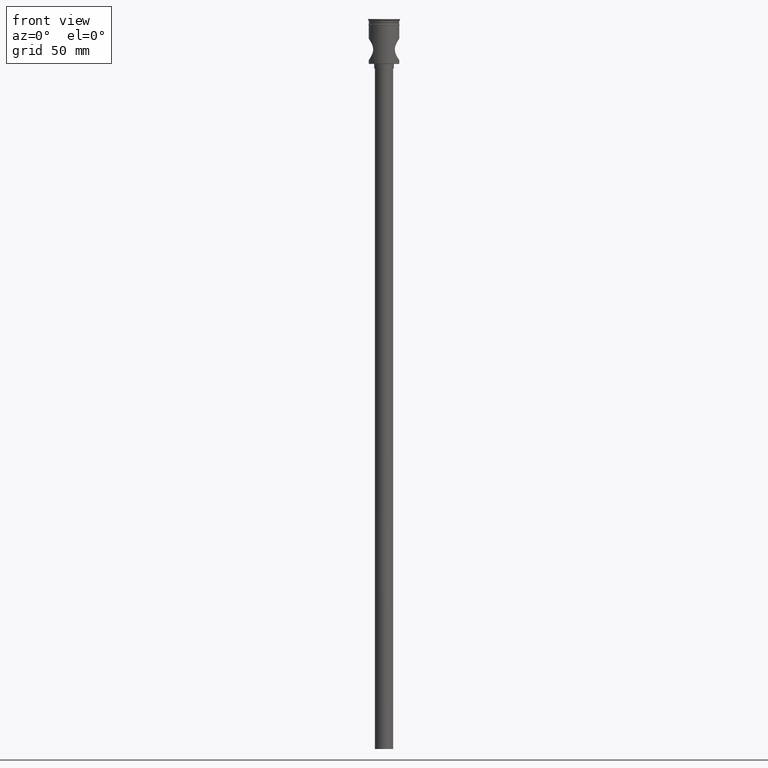
[diagram: clean part render]
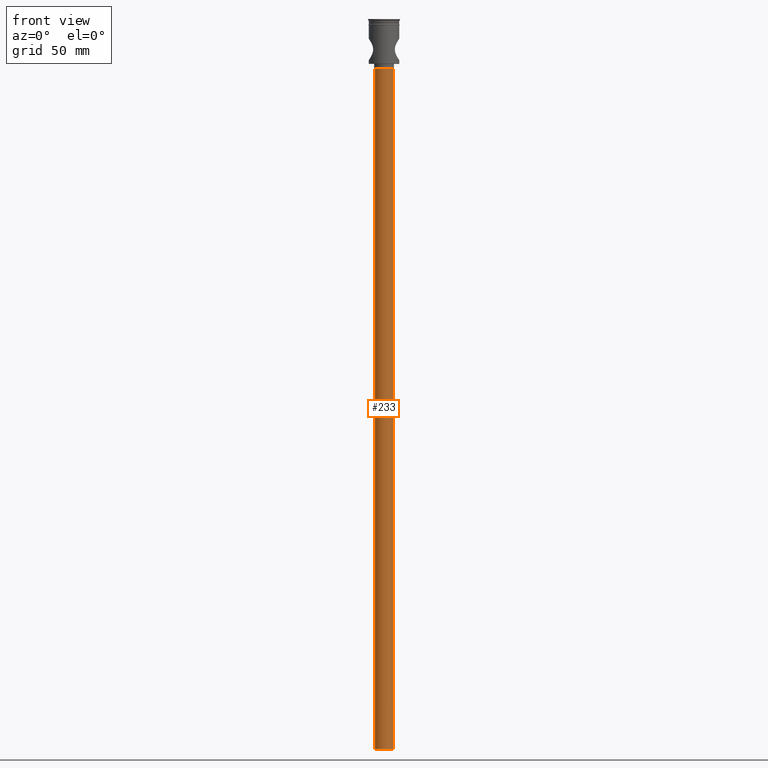
[diagram: same view with one face highlighted and labeled with its STEP entity id]
A machine part, front view. The second image highlights one B-rep face of the part: STEP entity #233.
In plain terms, the highlighted cylindrical surface (edge-blend (fillet) strip) has radius 6 mm, axis along (-0, -0, 1).
Its self-contained STEP definition (entity closure, byte-faithful):
#4 = LINE ( 'NONE', #823, #487 ) ;
#66 = ORIENTED_EDGE ( 'NONE', *, *, #684, .T. ) ;
#68 = CARTESIAN_POINT ( 'NONE',  ( 6.000000000000000888, 0.000000000000000000, -32.50000000000000000 ) ) ;
#74 = DIRECTION ( 'NONE',  ( -1.000000000000000000, 0.000000000000000000, 0.000000000000000000 ) ) ;
#76 = DIRECTION ( 'NONE',  ( -1.000000000000000000, 0.000000000000000000, 0.000000000000000000 ) ) ;
#100 = EDGE_CURVE ( 'NONE', #146, #1300, #102, .T. ) ;
#102 = CIRCLE ( 'NONE', #881, 6.000000000000000888 ) ;
#122 = DIRECTION ( 'NONE',  ( 1.000000000000000000, 0.000000000000000000, 0.000000000000000000 ) ) ;
#135 = CARTESIAN_POINT ( 'NONE',  ( -6.000000000000000888, 7.347880794884120722E-16, -479.5000000000000568 ) ) ;
#146 = VERTEX_POINT ( 'NONE', #1260 ) ;
#233 = ADVANCED_FACE ( 'NONE', ( #843 ), #589, .T. ) ;
#248 = EDGE_CURVE ( 'NONE', #146, #436, #4, .T. ) ;
#286 = AXIS2_PLACEMENT_3D ( 'NONE', #347, #1329, #122 ) ;
#347 = CARTESIAN_POINT ( 'NONE',  ( 0.000000000000000000, 0.000000000000000000, -479.5000000000000568 ) ) ;
#377 = LINE ( 'NONE', #496, #391 ) ;
#391 = VECTOR ( 'NONE', #1180, 1000.000000000000000 ) ;
#436 = VERTEX_POINT ( 'NONE', #68 ) ;
#487 = VECTOR ( 'NONE', #840, 1000.000000000000000 ) ;
#496 = CARTESIAN_POINT ( 'NONE',  ( -6.000000000000000888, 7.347880794884120722E-16, -479.5000000000000568 ) ) ;
#561 = CARTESIAN_POINT ( 'NONE',  ( 0.000000000000000000, 0.000000000000000000, -32.50000000000000000 ) ) ;
#589 = CYLINDRICAL_SURFACE ( 'NONE', #286, 6.000000000000000888 ) ;
#684 = EDGE_CURVE ( 'NONE', #436, #847, #1486, .T. ) ;
#792 = DIRECTION ( 'NONE',  ( 0.000000000000000000, 0.000000000000000000, -1.000000000000000000 ) ) ;
#823 = CARTESIAN_POINT ( 'NONE',  ( 6.000000000000000888, 0.000000000000000000, -479.5000000000000568 ) ) ;
#840 = DIRECTION ( 'NONE',  ( -0.000000000000000000, -0.000000000000000000, 1.000000000000000000 ) ) ;
#843 = FACE_OUTER_BOUND ( 'NONE', #1421, .T. ) ;
#847 = VERTEX_POINT ( 'NONE', #1273 ) ;
#854 = ORIENTED_EDGE ( 'NONE', *, *, #248, .T. ) ;
#881 = AXIS2_PLACEMENT_3D ( 'NONE', #990, #1132, #74 ) ;
#990 = CARTESIAN_POINT ( 'NONE',  ( 0.000000000000000000, 0.000000000000000000, -479.5000000000000568 ) ) ;
#999 = ORIENTED_EDGE ( 'NONE', *, *, #100, .F. ) ;
#1132 = DIRECTION ( 'NONE',  ( 0.000000000000000000, 0.000000000000000000, -1.000000000000000000 ) ) ;
#1173 = ORIENTED_EDGE ( 'NONE', *, *, #1233, .F. ) ;
#1180 = DIRECTION ( 'NONE',  ( -0.000000000000000000, -0.000000000000000000, 1.000000000000000000 ) ) ;
#1233 = EDGE_CURVE ( 'NONE', #1300, #847, #377, .T. ) ;
#1260 = CARTESIAN_POINT ( 'NONE',  ( 6.000000000000000888, 0.000000000000000000, -479.5000000000000568 ) ) ;
#1273 = CARTESIAN_POINT ( 'NONE',  ( -6.000000000000000888, 7.347880794884120722E-16, -32.50000000000000000 ) ) ;
#1300 = VERTEX_POINT ( 'NONE', #135 ) ;
#1329 = DIRECTION ( 'NONE',  ( -0.000000000000000000, -0.000000000000000000, 1.000000000000000000 ) ) ;
#1421 = EDGE_LOOP ( 'NONE', ( #1173, #999, #854, #66 ) ) ;
#1443 = AXIS2_PLACEMENT_3D ( 'NONE', #561, #792, #76 ) ;
#1486 = CIRCLE ( 'NONE', #1443, 6.000000000000000888 ) ;